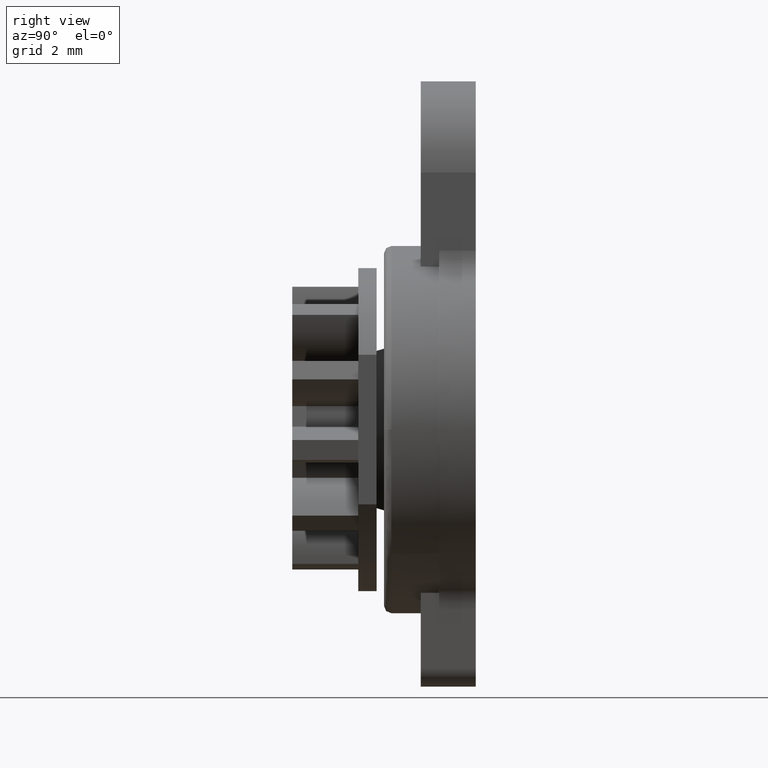
[diagram: clean part render]
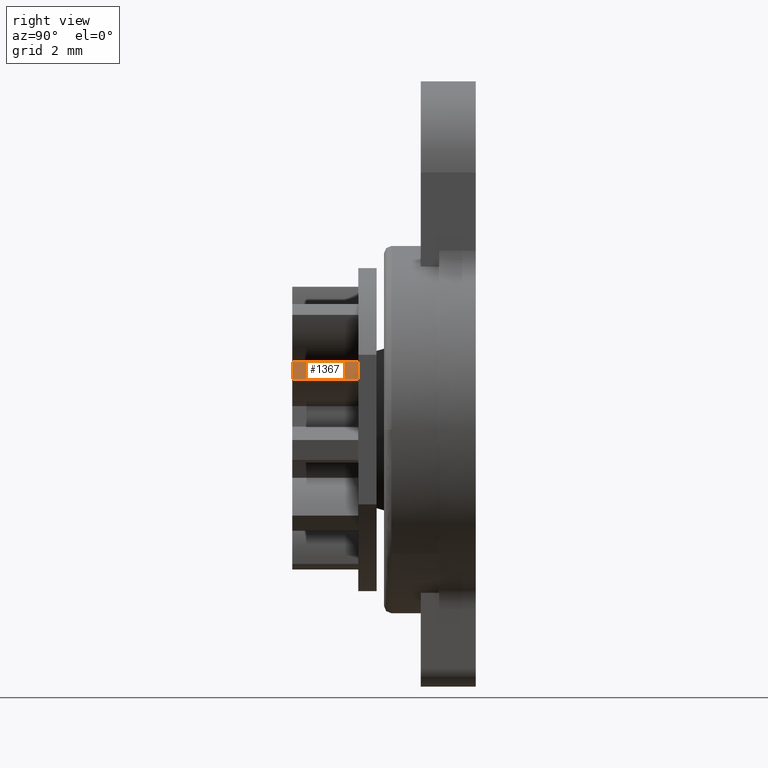
[diagram: same view with one face highlighted and labeled with its STEP entity id]
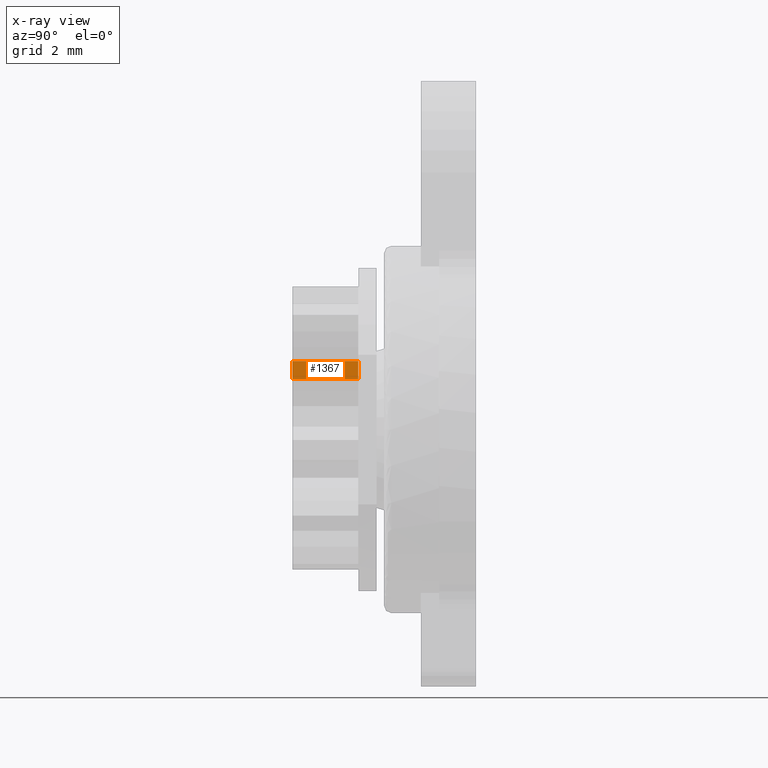
[diagram: x-ray of the same camera — body ghosted, the highlighted face saturated]
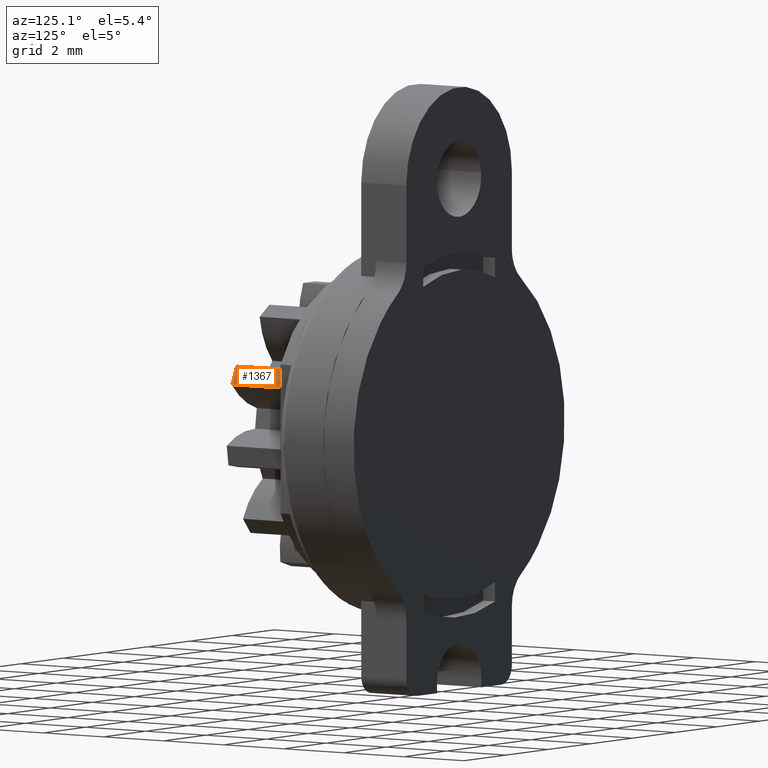
[diagram: same view with one face highlighted and labeled with its STEP entity id]
A machine part, right view. The second image highlights one B-rep face of the part: STEP entity #1367.
The next image is the same camera in x-ray: the body ghosted, the highlighted face saturated — about 0% of this face is hidden behind the body in this view.
A second angle (auxiliary view) of the same face is appended — the face is thin or edge-on in the first view.
In plain terms, the highlighted face is a freeform B-spline surface patch.
Its self-contained STEP definition (entity closure, byte-faithful):
#908=CARTESIAN_POINT('',(3.651936855382260,-5.0,1.368706398136866));
#909=VERTEX_POINT('',#908);
#923=CARTESIAN_POINT('',(3.425909343212965,-5.0,1.863637618231125));
#924=VERTEX_POINT('',#923);
#925=CARTESIAN_POINT('',(3.651936855382258,-5.0,1.368706398136865));
#926=CARTESIAN_POINT('',(3.556227580473862,-5.0,1.624074699852756));
#927=CARTESIAN_POINT('',(3.425909343212962,-5.0,1.863637618231124));
#935=(BOUNDED_CURVE()B_SPLINE_CURVE(2,(#925,#926,#927),.UNSPECIFIED.,.F.,.U.)CURVE()GEOMETRIC_REPRESENTATION_ITEM()QUASI_UNIFORM_CURVE()RATIONAL_B_SPLINE_CURVE((1.0,0.997564050259824,1.0))REPRESENTATION_ITEM(''));
#936=EDGE_CURVE('',#909,#924,#935,.T.);
#1304=CARTESIAN_POINT('',(3.425909343212965,-3.200000000000090,1.863637618231125));
#1305=VERTEX_POINT('',#1304);
#1321=CARTESIAN_POINT('',(3.425909343212965,-5.0,1.863637618231125));
#1322=CARTESIAN_POINT('',(3.425909343212965,-3.200000000000090,1.863637618231125));
#1323=QUASI_UNIFORM_CURVE('',1,(#1321,#1322),.UNSPECIFIED.,.F.,.U.);
#1324=EDGE_CURVE('',#924,#1305,#1323,.T.);
#1329=CARTESIAN_POINT('',(3.661379006925079,-5.045000000000000,1.343243748412165));
#1330=CARTESIAN_POINT('',(3.661379006925079,-3.153875000000093,1.343243748412165));
#1331=CARTESIAN_POINT('',(3.558040299383151,-5.044999999999999,1.624921719997029));
#1332=CARTESIAN_POINT('',(3.558040299383151,-3.153875000000092,1.624921719997029));
#1333=CARTESIAN_POINT('',(3.412832414277945,-5.044999999999999,1.887478453401207));
#1334=CARTESIAN_POINT('',(3.412832414277945,-3.153875000000092,1.887478453401207));
#1342=(BOUNDED_SURFACE()B_SPLINE_SURFACE(1,2,((#1329,#1331,#1333),(#1330,#1332,#1334)),.UNSPECIFIED.,.F.,.F.,.U.)B_SPLINE_SURFACE_WITH_KNOTS((2,2),(3,3),(0.0,1.0),(0.084832892844081,0.761294676831365),.UNSPECIFIED.)GEOMETRIC_REPRESENTATION_ITEM()RATIONAL_B_SPLINE_SURFACE(((0.999001885663103,0.995391265366905,0.997663689764682),(0.999001885663103,0.995391265366905,0.997663689764682)))REPRESENTATION_ITEM('')SURFACE());
#1343=CARTESIAN_POINT('',(3.651936855382260,-3.200000000000090,1.368706398136866));
#1344=VERTEX_POINT('',#1343);
#1345=CARTESIAN_POINT('',(3.651936855382258,-3.200000000000090,1.368706398136865));
#1346=CARTESIAN_POINT('',(3.556227580473862,-3.200000000000091,1.624074699852756));
#1347=CARTESIAN_POINT('',(3.425909343212962,-3.200000000000090,1.863637618231124));
#1355=(BOUNDED_CURVE()B_SPLINE_CURVE(2,(#1345,#1346,#1347),.UNSPECIFIED.,.F.,.U.)CURVE()GEOMETRIC_REPRESENTATION_ITEM()QUASI_UNIFORM_CURVE()RATIONAL_B_SPLINE_CURVE((1.0,0.997564050259824,1.0))REPRESENTATION_ITEM(''));
#1356=EDGE_CURVE('',#1344,#1305,#1355,.T.);
#1357=ORIENTED_EDGE('',*,*,#1356,.T.);
#1358=ORIENTED_EDGE('',*,*,#1324,.F.);
#1359=ORIENTED_EDGE('',*,*,#936,.F.);
#1360=CARTESIAN_POINT('',(3.651936855382260,-5.0,1.368706398136866));
#1361=CARTESIAN_POINT('',(3.651936855382260,-3.200000000000090,1.368706398136866));
#1362=QUASI_UNIFORM_CURVE('',1,(#1360,#1361),.UNSPECIFIED.,.F.,.U.);
#1363=EDGE_CURVE('',#909,#1344,#1362,.T.);
#1364=ORIENTED_EDGE('',*,*,#1363,.T.);
#1365=EDGE_LOOP('',(#1357,#1358,#1359,#1364));
#1366=FACE_OUTER_BOUND('',#1365,.T.);
#1367=ADVANCED_FACE('',(#1366),#1342,.T.);